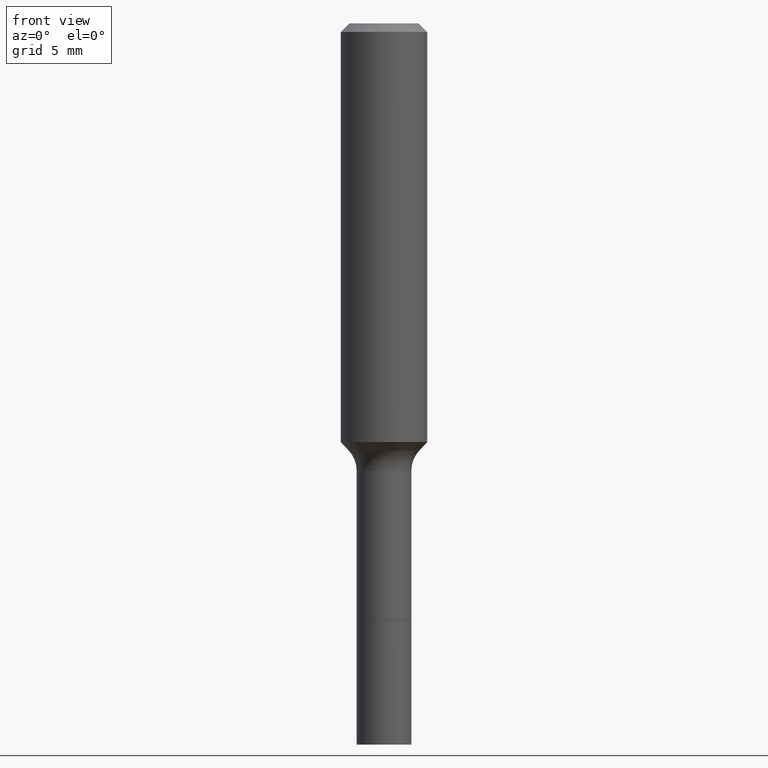
[diagram: clean part render]
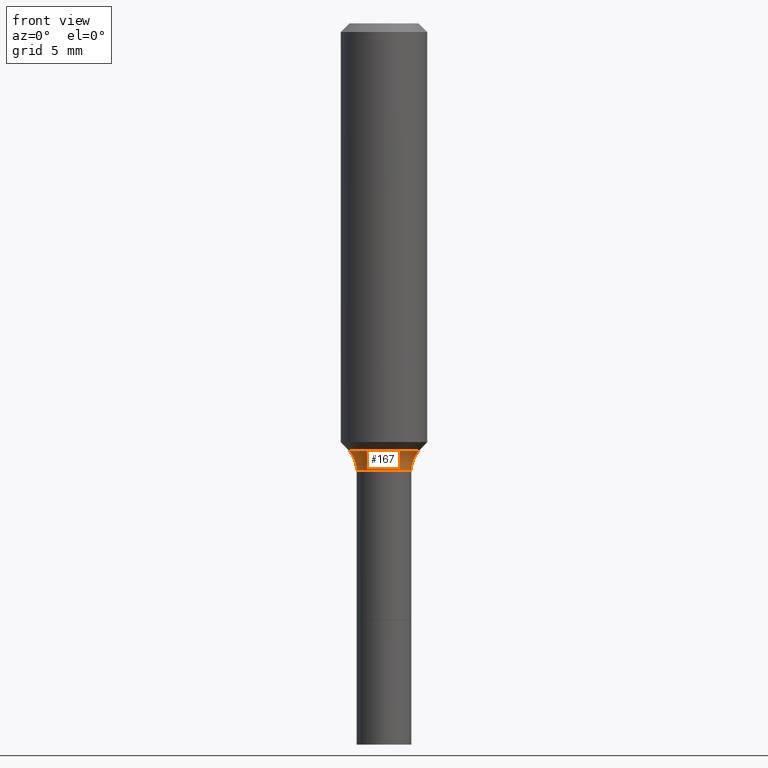
[diagram: same view with one face highlighted and labeled with its STEP entity id]
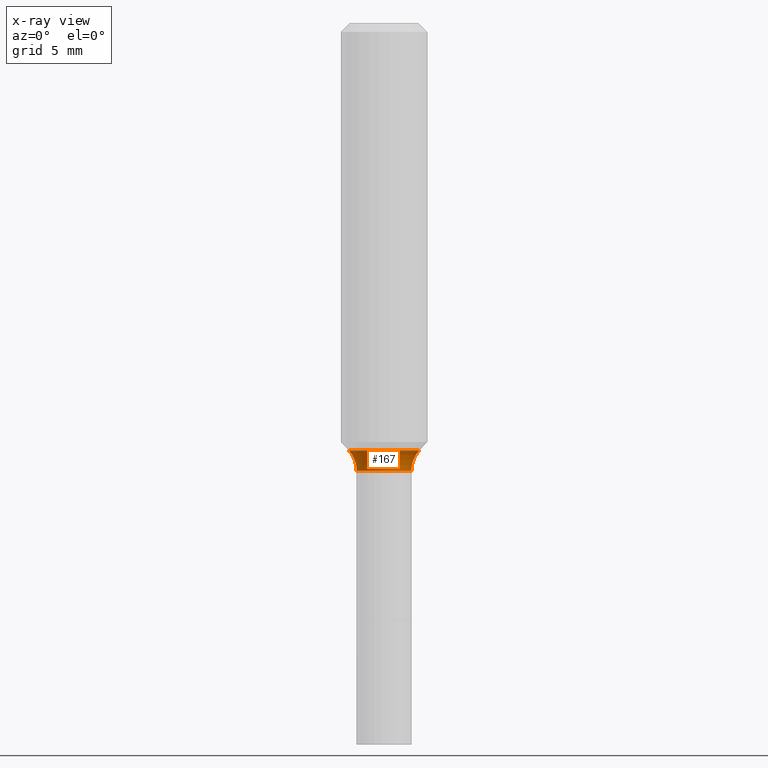
[diagram: x-ray of the same camera — body ghosted, the highlighted face saturated]
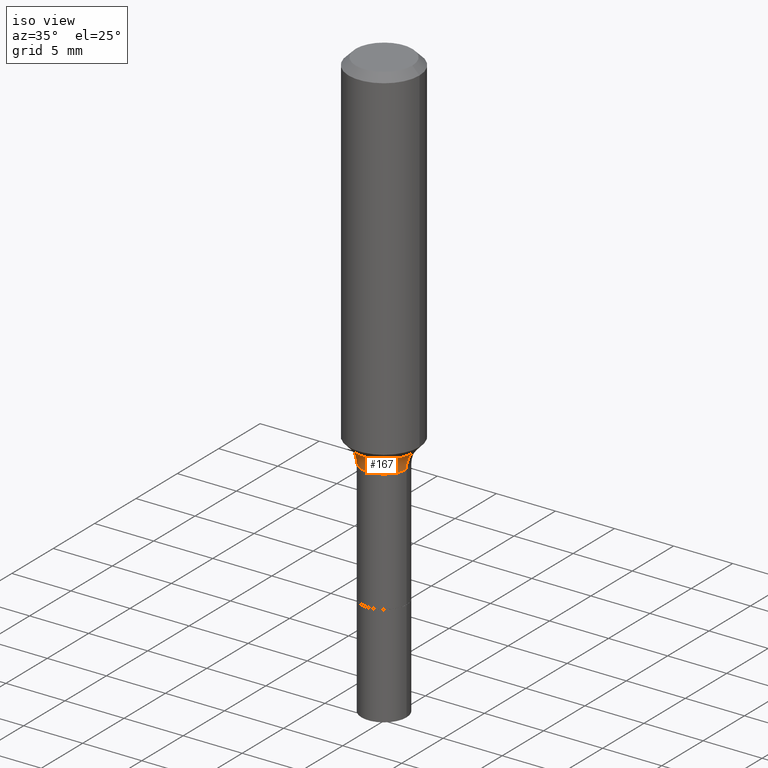
[diagram: same view with one face highlighted and labeled with its STEP entity id]
A machine part, front view. The second image highlights one B-rep face of the part: STEP entity #167.
The next image is the same camera in x-ray: the body ghosted, the highlighted face saturated — about 0% of this face is hidden behind the body in this view.
A second angle (iso view) of the same face is appended — the face is thin or edge-on in the first view.
In plain terms, the highlighted toroidal blend (fillet) surface has major radius 3.9319 mm and minor (blend) radius 2.032 mm.
Its self-contained STEP definition (entity closure, byte-faithful):
#9 = TOROIDAL_SURFACE ( 'NONE', #212, 0.1547999999999999654, 0.08000000000000001554 ) ;
#18 = AXIS2_PLACEMENT_3D ( 'NONE', #156, #464, #356 ) ;
#30 = DIRECTION ( 'NONE',  ( -2.445468806185136597E-29, 3.491481338843145583E-15, 1.000000000000000000 ) ) ;
#41 = EDGE_LOOP ( 'NONE', ( #163, #108, #139, #223 ) ) ;
#42 = CIRCLE ( 'NONE', #366, 0.08000000000000000167 ) ;
#44 = VERTEX_POINT ( 'NONE', #127 ) ;
#84 = EDGE_CURVE ( 'NONE', #386, #44, #42, .T. ) ;
#92 = FACE_OUTER_BOUND ( 'NONE', #41, .T. ) ;
#99 = CARTESIAN_POINT ( 'NONE',  ( 0.09629170387046642743, -4.743259584573956502E-15, -1.165940131194999951 ) ) ;
#104 = VERTEX_POINT ( 'NONE', #99 ) ;
#105 = DIRECTION ( 'NONE',  ( 1.000000000000000000, -6.982962677686265133E-15, 0.000000000000000000 ) ) ;
#108 = ORIENTED_EDGE ( 'NONE', *, *, #84, .T. ) ;
#124 = CIRCLE ( 'NONE', #259, 0.09629170387046644131 ) ;
#127 = CARTESIAN_POINT ( 'NONE',  ( -0.07479999999999994986, -4.443002071168217249E-15, -1.220499999999999918 ) ) ;
#135 = DIRECTION ( 'NONE',  ( 1.000000000000000000, -6.982962677686271444E-15, 0.000000000000000000 ) ) ;
#139 = ORIENTED_EDGE ( 'NONE', *, *, #376, .T. ) ;
#149 = EDGE_CURVE ( 'NONE', #104, #434, #496, .T. ) ;
#156 = CARTESIAN_POINT ( 'NONE',  ( 2.984694677948959472E-29, -4.261352974058059028E-15, -1.220499999999999918 ) ) ;
#163 = ORIENTED_EDGE ( 'NONE', *, *, #288, .F. ) ;
#167 = ADVANCED_FACE ( 'NONE', ( #92 ), #9, .F. ) ;
#176 = CIRCLE ( 'NONE', #18, 0.07479999999999994986 ) ;
#212 = AXIS2_PLACEMENT_3D ( 'NONE', #221, #452, #377 ) ;
#217 = CARTESIAN_POINT ( 'NONE',  ( -0.1547999999999999654, -3.161432819101424383E-15, -1.220499999999999918 ) ) ;
#221 = CARTESIAN_POINT ( 'NONE',  ( 2.984694677948959472E-29, -4.261352974058059028E-15, -1.220499999999999918 ) ) ;
#223 = ORIENTED_EDGE ( 'NONE', *, *, #149, .F. ) ;
#258 = DIRECTION ( 'NONE',  ( 7.105427357601001859E-15, 1.000000000000000000, -3.491481338843145583E-15 ) ) ;
#259 = AXIS2_PLACEMENT_3D ( 'NONE', #347, #30, #105 ) ;
#270 = CARTESIAN_POINT ( 'NONE',  ( -0.09629170387046642743, -3.386664503284444931E-15, -1.165940131194999951 ) ) ;
#282 = AXIS2_PLACEMENT_3D ( 'NONE', #383, #483, #135 ) ;
#288 = EDGE_CURVE ( 'NONE', #386, #104, #124, .T. ) ;
#347 = CARTESIAN_POINT ( 'NONE',  ( 2.851270220716778580E-29, -4.070858210275671756E-15, -1.165940131194999951 ) ) ;
#350 = CARTESIAN_POINT ( 'NONE',  ( 0.07479999999999994986, -4.783678582348991828E-15, -1.220499999999999918 ) ) ;
#356 = DIRECTION ( 'NONE',  ( 1.000000000000000000, -6.982962677686266711E-15, 0.000000000000000000 ) ) ;
#366 = AXIS2_PLACEMENT_3D ( 'NONE', #217, #258, #415 ) ;
#376 = EDGE_CURVE ( 'NONE', #44, #434, #176, .T. ) ;
#377 = DIRECTION ( 'NONE',  ( 1.000000000000000000, -6.982962677686265922E-15, 4.883557194083112901E-29 ) ) ;
#383 = CARTESIAN_POINT ( 'NONE',  ( 0.1547999999999999654, -5.342315596563893480E-15, -1.220499999999999918 ) ) ;
#386 = VERTEX_POINT ( 'NONE', #270 ) ;
#415 = DIRECTION ( 'NONE',  ( -1.000000000000000000, 7.105427357601005014E-15, 0.000000000000000000 ) ) ;
#434 = VERTEX_POINT ( 'NONE', #350 ) ;
#452 = DIRECTION ( 'NONE',  ( -2.445468806185136597E-29, 3.491481338843145583E-15, 1.000000000000000000 ) ) ;
#464 = DIRECTION ( 'NONE',  ( -2.445468806185136597E-29, 3.491481338843145583E-15, 1.000000000000000000 ) ) ;
#483 = DIRECTION ( 'NONE',  ( -6.982962677686266711E-15, -1.000000000000000000, 3.491481338843145583E-15 ) ) ;
#496 = CIRCLE ( 'NONE', #282, 0.08000000000000000167 ) ;